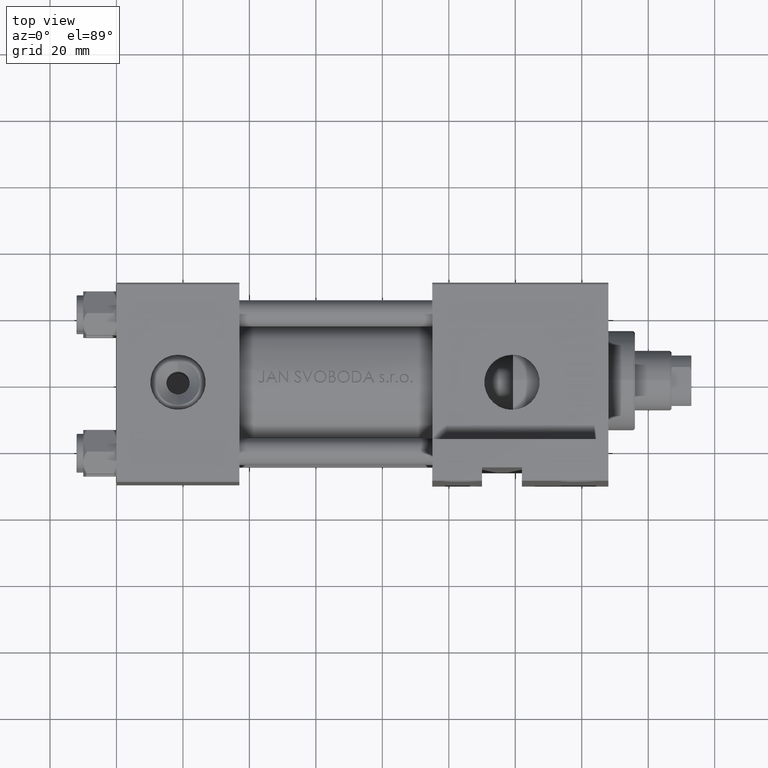
[diagram: clean part render]
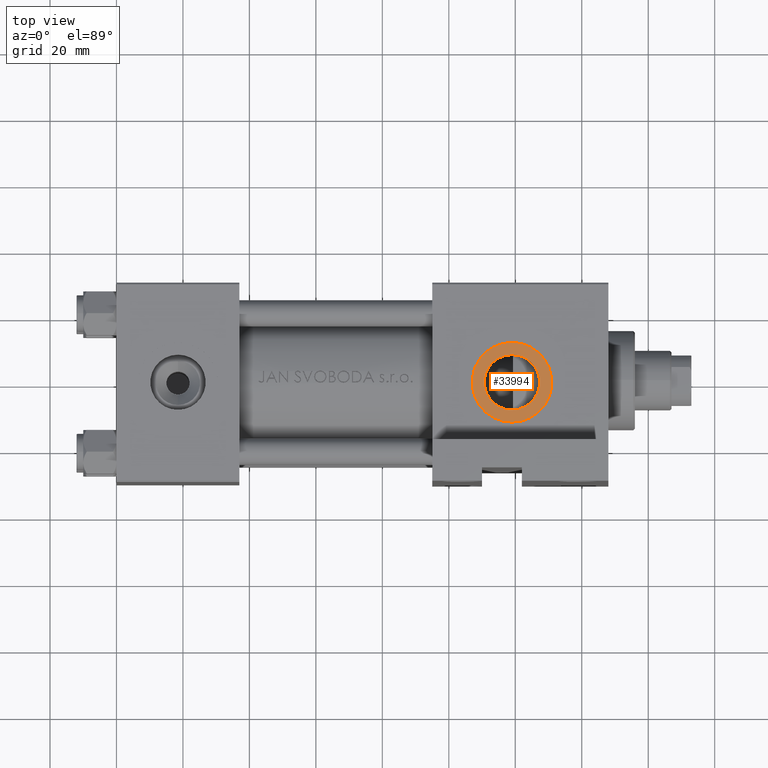
[diagram: same view with one face highlighted and labeled with its STEP entity id]
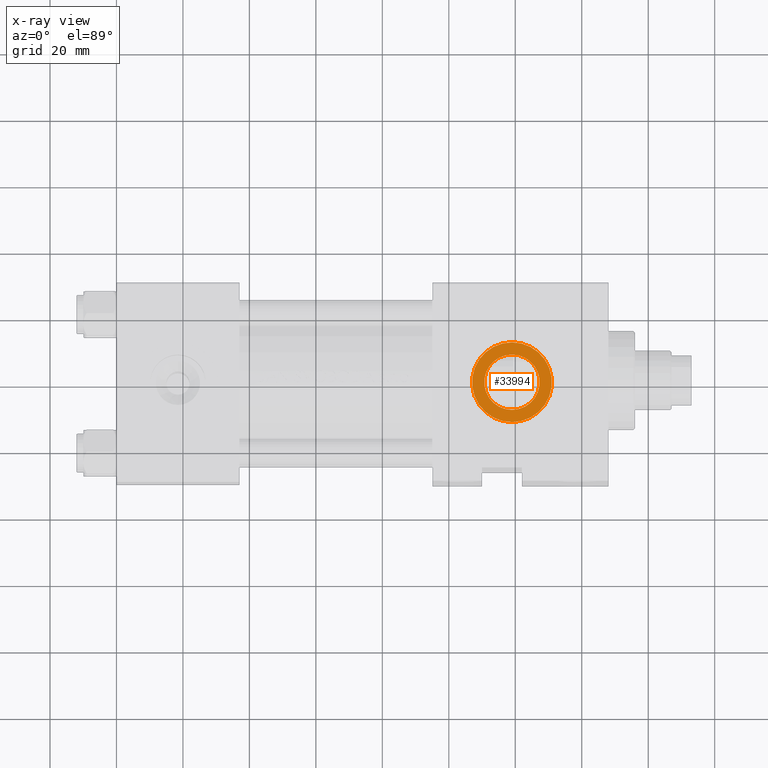
[diagram: x-ray of the same camera — body ghosted, the highlighted face saturated]
A machine part, top view. The second image highlights one B-rep face of the part: STEP entity #33994.
The next image is the same camera in x-ray: the body ghosted, the highlighted face saturated — about 0% of this face is hidden behind the body in this view.
In plain terms, the highlighted planar face has unit normal (0, -0, 1).
Its self-contained STEP definition (entity closure, byte-faithful):
#1499 = EDGE_CURVE ( 'NONE', #8447, #22582, #29034, .T. ) ;
#1692 = EDGE_CURVE ( 'NONE', #22582, #8447, #11152, .T. ) ;
#3867 = ORIENTED_EDGE ( 'NONE', *, *, #1499, .F. ) ;
#4059 = DIRECTION ( 'NONE',  ( 0.000000000000000000, 0.000000000000000000, -1.000000000000000000 ) ) ;
#7591 = EDGE_CURVE ( 'NONE', #26590, #29387, #9026, .T. ) ;
#8447 = VERTEX_POINT ( 'NONE', #10882 ) ;
#8766 = ORIENTED_EDGE ( 'NONE', *, *, #1692, .F. ) ;
#9026 = CIRCLE ( 'NONE', #35925, 12.00000000000000533 ) ;
#10312 = DIRECTION ( 'NONE',  ( 0.000000000000000000, -1.000000000000000000, -8.673617379884036705E-17 ) ) ;
#10651 = DIRECTION ( 'NONE',  ( 0.000000000000000000, 0.000000000000000000, -1.000000000000000000 ) ) ;
#10882 = CARTESIAN_POINT ( 'NONE',  ( 119.0000000000000000, -29.80000000000000071, -8.329999999999998295 ) ) ;
#11111 = AXIS2_PLACEMENT_3D ( 'NONE', #47643, #11963, #4059 ) ;
#11152 = CIRCLE ( 'NONE', #11949, 8.329999999999998295 ) ;
#11154 = DIRECTION ( 'NONE',  ( 0.000000000000000000, -1.000000000000000000, -8.673617379884036705E-17 ) ) ;
#11926 = DIRECTION ( 'NONE',  ( 0.000000000000000000, -1.000000000000000000, -8.673617379884036705E-17 ) ) ;
#11949 = AXIS2_PLACEMENT_3D ( 'NONE', #18821, #11154, #10651 ) ;
#11963 = DIRECTION ( 'NONE',  ( 0.000000000000000000, -1.000000000000000000, -8.673617379884036705E-17 ) ) ;
#12426 = CARTESIAN_POINT ( 'NONE',  ( 119.0000000000000000, -29.80000000000000071, 1.734723475976807403E-17 ) ) ;
#12487 = ORIENTED_EDGE ( 'NONE', *, *, #36203, .T. ) ;
#13119 = PLANE ( 'NONE',  #22053 ) ;
#16773 = DIRECTION ( 'NONE',  ( 0.000000000000000000, 0.000000000000000000, -1.000000000000000000 ) ) ;
#18821 = CARTESIAN_POINT ( 'NONE',  ( 119.0000000000000000, -29.80000000000000071, 1.734723475976808635E-17 ) ) ;
#20602 = DIRECTION ( 'NONE',  ( 0.000000000000000000, 0.000000000000000000, -1.000000000000000000 ) ) ;
#22049 = FACE_BOUND ( 'NONE', #24225, .T. ) ;
#22053 = AXIS2_PLACEMENT_3D ( 'NONE', #33264, #10312, #29433 ) ;
#22582 = VERTEX_POINT ( 'NONE', #48150 ) ;
#22987 = CIRCLE ( 'NONE', #40101, 12.00000000000000533 ) ;
#24225 = EDGE_LOOP ( 'NONE', ( #3867, #8766 ) ) ;
#25377 = FACE_OUTER_BOUND ( 'NONE', #30333, .T. ) ;
#26590 = VERTEX_POINT ( 'NONE', #46157 ) ;
#28323 = ORIENTED_EDGE ( 'NONE', *, *, #7591, .T. ) ;
#29034 = CIRCLE ( 'NONE', #11111, 8.329999999999998295 ) ;
#29387 = VERTEX_POINT ( 'NONE', #31812 ) ;
#29433 = DIRECTION ( 'NONE',  ( 0.000000000000000000, 8.673617379884036705E-17, -1.000000000000000000 ) ) ;
#29495 = CARTESIAN_POINT ( 'NONE',  ( 119.0000000000000000, -29.80000000000000071, 1.734723475976807403E-17 ) ) ;
#30333 = EDGE_LOOP ( 'NONE', ( #12487, #28323 ) ) ;
#31812 = CARTESIAN_POINT ( 'NONE',  ( 119.0000000000000000, -29.80000000000000071, -12.00000000000000533 ) ) ;
#33264 = CARTESIAN_POINT ( 'NONE',  ( 119.0000000000000000, -29.80000000000000071, 1.734723475976807403E-17 ) ) ;
#33994 = ADVANCED_FACE ( 'NONE', ( #22049, #25377 ), #13119, .T. ) ;
#35925 = AXIS2_PLACEMENT_3D ( 'NONE', #29495, #45048, #20602 ) ;
#36203 = EDGE_CURVE ( 'NONE', #29387, #26590, #22987, .T. ) ;
#40101 = AXIS2_PLACEMENT_3D ( 'NONE', #12426, #11926, #16773 ) ;
#45048 = DIRECTION ( 'NONE',  ( 0.000000000000000000, -1.000000000000000000, -8.673617379884036705E-17 ) ) ;
#46157 = CARTESIAN_POINT ( 'NONE',  ( 119.0000000000000000, -29.80000000000000071, 12.00000000000000533 ) ) ;
#47643 = CARTESIAN_POINT ( 'NONE',  ( 119.0000000000000000, -29.80000000000000071, 1.734723475976808635E-17 ) ) ;
#48150 = CARTESIAN_POINT ( 'NONE',  ( 119.0000000000000000, -29.80000000000000071, 8.329999999999998295 ) ) ;